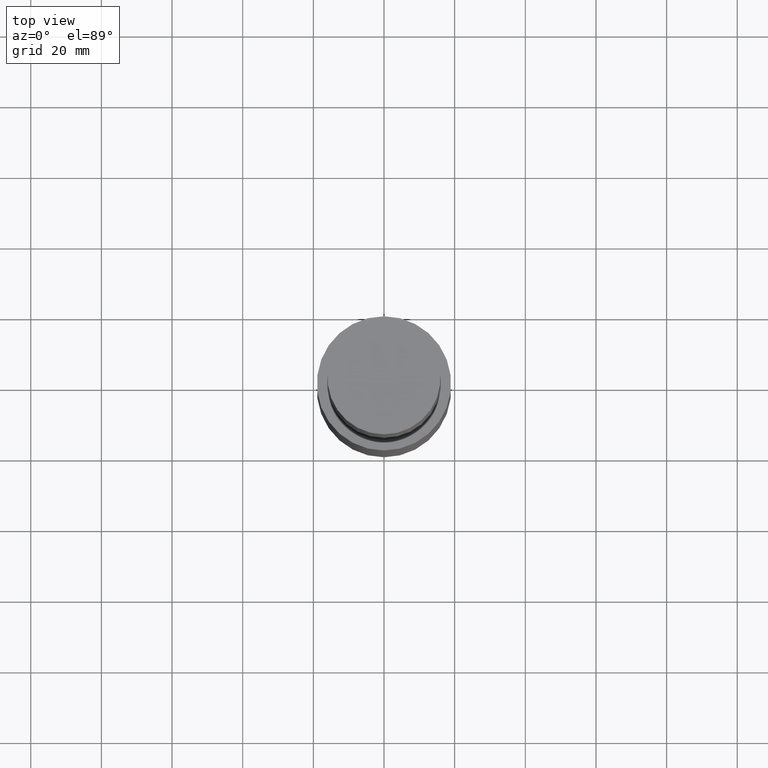
[diagram: clean part render]
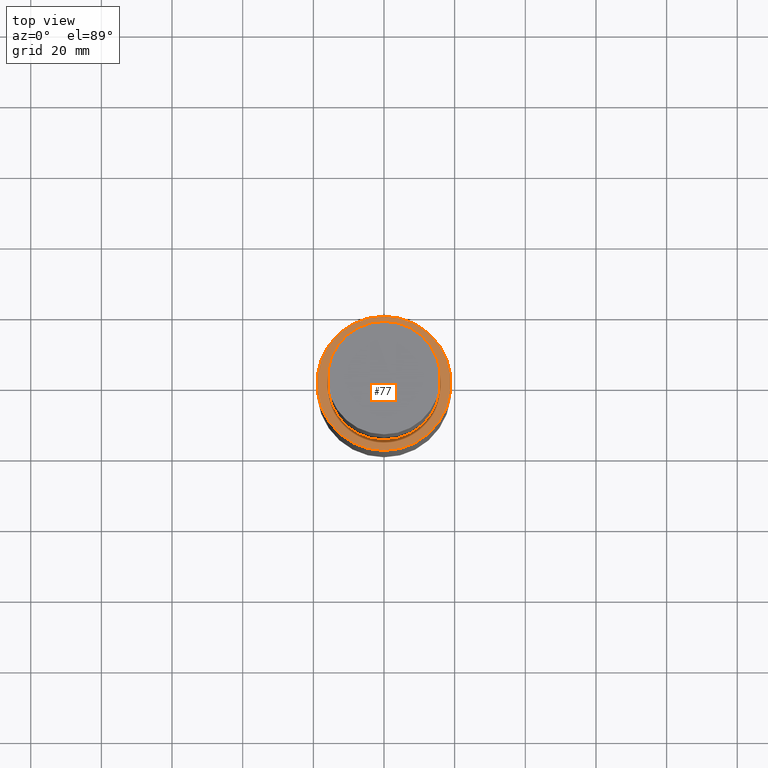
[diagram: same view with one face highlighted and labeled with its STEP entity id]
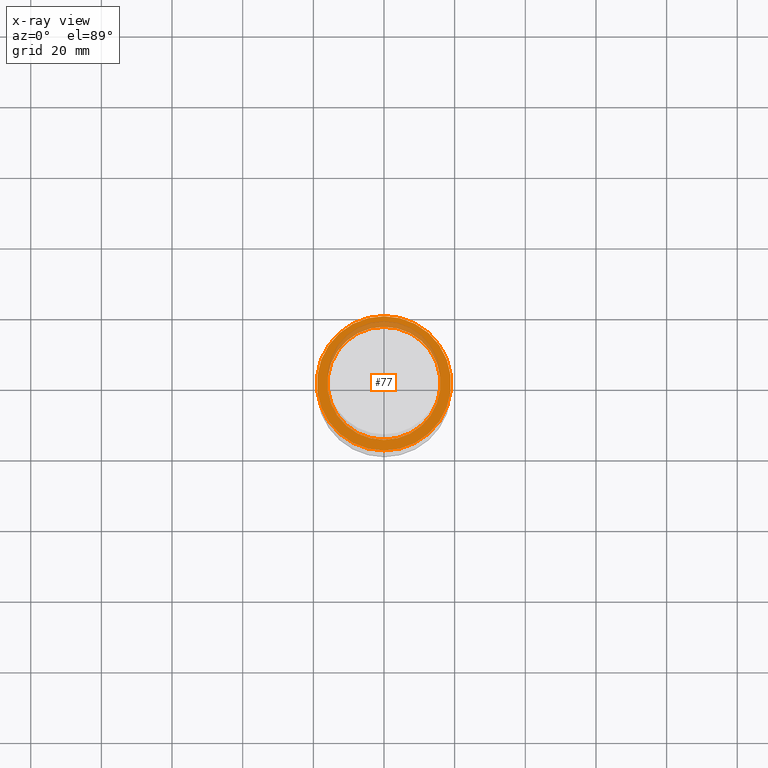
[diagram: x-ray of the same camera — body ghosted, the highlighted face saturated]
A machine part, top view. The second image highlights one B-rep face of the part: STEP entity #77.
The next image is the same camera in x-ray: the body ghosted, the highlighted face saturated — about 15% of this face is hidden behind the body in this view.
In plain terms, the highlighted planar face has unit normal (-0, 0, 1).
Its self-contained STEP definition (entity closure, byte-faithful):
#77=ADVANCED_FACE('',(#86,#87),#88,.T.);
#86=FACE_BOUND('',#99,.T.);
#87=FACE_OUTER_BOUND('',#100,.T.);
#88=PLANE('',#101);
#99=EDGE_LOOP('',(#116));
#100=EDGE_LOOP('',(#117));
#101=AXIS2_PLACEMENT_3D('',#118,#119,#120);
#116=ORIENTED_EDGE('',*,*,#132,.F.);
#117=ORIENTED_EDGE('',*,*,#131,.T.);
#118=CARTESIAN_POINT('',(-6.7355573953104E-015,17.5000000002169,109.999999999999));
#119=DIRECTION('',(-6.12323399573677E-017,5.44626966146839E-013,1.0));
#120=DIRECTION('',(3.33439563883223E-029,1.0,-5.44626966146839E-013));
#131=EDGE_CURVE('',#136,#136,#137,.T.);
#132=EDGE_CURVE('',#138,#138,#139,.T.);
#136=VERTEX_POINT('',#144);
#137=CIRCLE('',#145,19.0000000000039);
#138=VERTEX_POINT('',#146);
#139=CIRCLE('',#147,16.0000000004299);
#144=CARTESIAN_POINT('',(-6.73555739531035E-015,19.0000000000039,109.999999999998));
#145=AXIS2_PLACEMENT_3D('',#153,#154,#155);
#146=CARTESIAN_POINT('',(-6.73555739531045E-015,16.0000000004299,110.0));
#147=AXIS2_PLACEMENT_3D('',#156,#157,#158);
#153=CARTESIAN_POINT('',(-6.73555739531035E-015,1.99423174403266E-015,109.999999999998));
#154=DIRECTION('',(-6.12323399573676E-017,1.81293794912066E-017,1.0));
#155=DIRECTION('',(-3.71704840254733E-033,1.0,-1.81293794912066E-017));
#156=CARTESIAN_POINT('',(-6.73555739531045E-015,1.99423174403271E-015,110.0));
#157=DIRECTION('',(-6.12323399573677E-017,1.81293794912065E-017,1.0));
#158=DIRECTION('',(-3.71704840254733E-033,1.0,-1.81293794912065E-017));